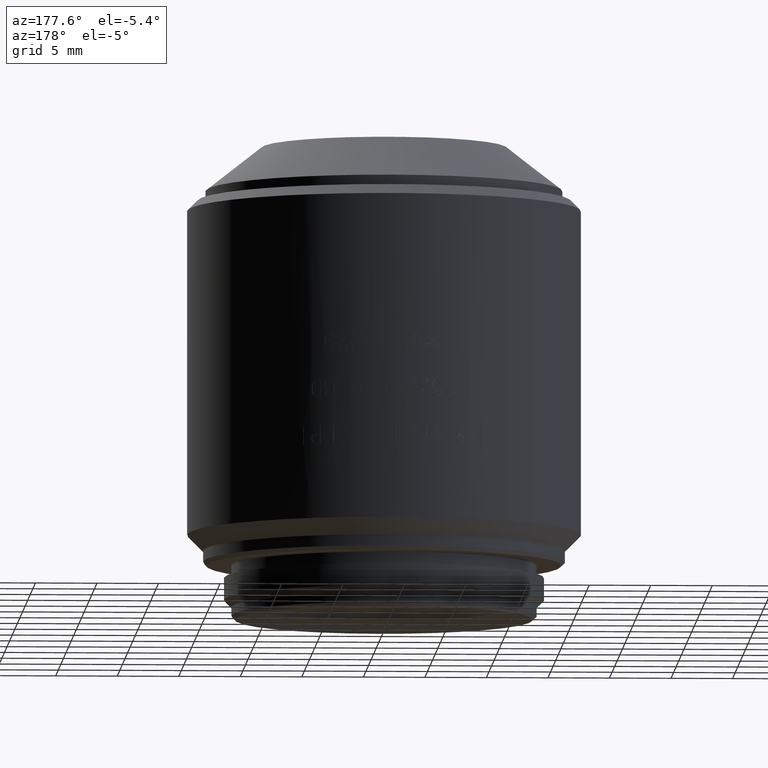
[diagram: clean part render]
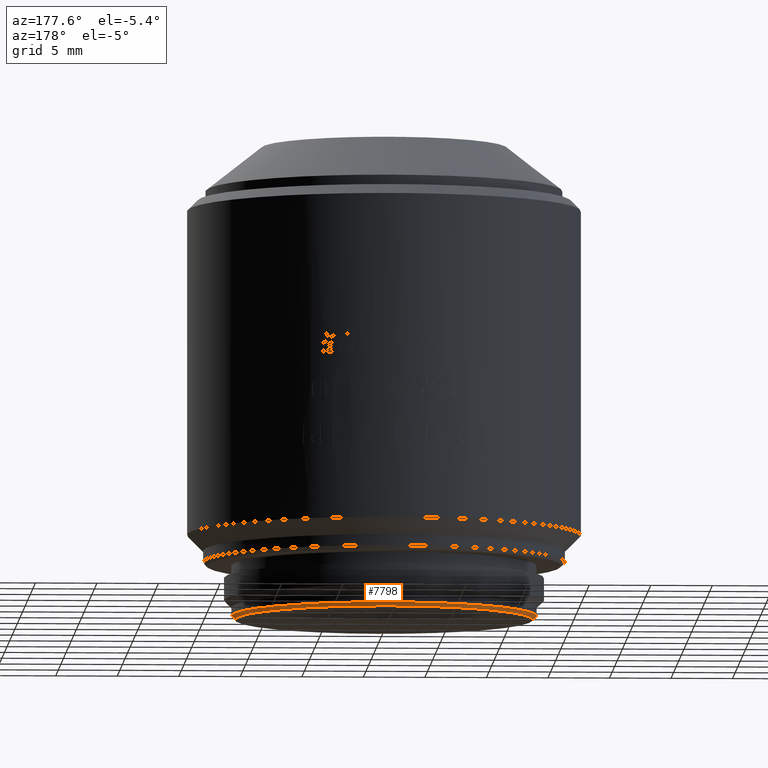
[diagram: same view with one face highlighted and labeled with its STEP entity id]
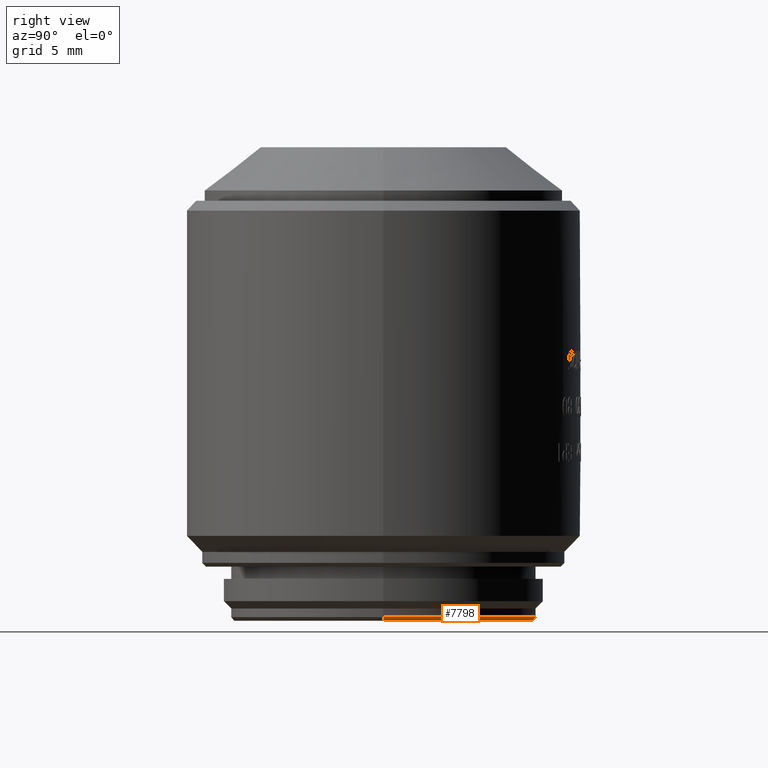
[diagram: same view with one face highlighted and labeled with its STEP entity id]
A machine part, auxiliary view. The second image highlights one B-rep face of the part: STEP entity #7798.
A second angle (right view) of the same face is appended — the face is thin or edge-on in the first view.
In plain terms, the highlighted conical surface has half-angle 45 deg.
Its self-contained STEP definition (entity closure, byte-faithful):
#106 = CARTESIAN_POINT ( 'NONE',  ( -12.09999999999999964, 1.481822626968297304E-15, 0.000000000000000000 ) ) ;
#740 = VECTOR ( 'NONE', #7063, 999.9999999999998863 ) ;
#1120 = FACE_OUTER_BOUND ( 'NONE', #11400, .T. ) ;
#1852 = EDGE_CURVE ( 'NONE', #24653, #9609, #18340, .T. ) ;
#1882 = CARTESIAN_POINT ( 'NONE',  ( -12.09999999999999964, 1.500192328955507537E-15, 0.000000000000000000 ) ) ;
#1956 = ORIENTED_EDGE ( 'NONE', *, *, #23128, .F. ) ;
#2634 = CARTESIAN_POINT ( 'NONE',  ( -12.39999999999999680, 1.518562030942717573E-15, 0.2999999999999999889 ) ) ;
#3240 = DIRECTION ( 'NONE',  ( 0.000000000000000000, 0.000000000000000000, -1.000000000000000000 ) ) ;
#3834 = CARTESIAN_POINT ( 'NONE',  ( 12.09999999999999964, 0.000000000000000000, 0.000000000000000000 ) ) ;
#4510 = CARTESIAN_POINT ( 'NONE',  ( 0.000000000000000000, 0.000000000000000000, 0.000000000000000000 ) ) ;
#5147 = CONICAL_SURFACE ( 'NONE', #9550, 12.09999999999999964, 0.7853981633974419507 ) ;
#5229 = ORIENTED_EDGE ( 'NONE', *, *, #17439, .T. ) ;
#6271 = DIRECTION ( 'NONE',  ( 1.000000000000000000, 0.000000000000000000, 0.000000000000000000 ) ) ;
#6544 = CARTESIAN_POINT ( 'NONE',  ( 0.000000000000000000, 0.000000000000000000, 0.2999999999999999889 ) ) ;
#7063 = DIRECTION ( 'NONE',  ( 0.7071067811865431318, 0.000000000000000000, 0.7071067811865520136 ) ) ;
#7188 = CARTESIAN_POINT ( 'NONE',  ( 12.09999999999999964, 0.000000000000000000, 0.000000000000000000 ) ) ;
#7798 = ADVANCED_FACE ( 'NONE', ( #1120 ), #5147, .T. ) ;
#9448 = AXIS2_PLACEMENT_3D ( 'NONE', #12784, #3240, #16672 ) ;
#9550 = AXIS2_PLACEMENT_3D ( 'NONE', #4510, #22082, #6271 ) ;
#9609 = VERTEX_POINT ( 'NONE', #2634 ) ;
#10308 = AXIS2_PLACEMENT_3D ( 'NONE', #6544, #16207, #12437 ) ;
#11400 = EDGE_LOOP ( 'NONE', ( #1956, #5229, #17799, #13628 ) ) ;
#12437 = DIRECTION ( 'NONE',  ( 1.000000000000000000, 0.000000000000000000, 0.000000000000000000 ) ) ;
#12713 = LINE ( 'NONE', #7188, #740 ) ;
#12784 = CARTESIAN_POINT ( 'NONE',  ( 0.000000000000000000, 0.000000000000000000, 0.000000000000000000 ) ) ;
#13599 = EDGE_CURVE ( 'NONE', #19520, #24653, #12713, .T. ) ;
#13628 = ORIENTED_EDGE ( 'NONE', *, *, #13599, .F. ) ;
#16207 = DIRECTION ( 'NONE',  ( 0.000000000000000000, 0.000000000000000000, 1.000000000000000000 ) ) ;
#16672 = DIRECTION ( 'NONE',  ( 1.000000000000000000, 0.000000000000000000, 0.000000000000000000 ) ) ;
#17053 = DIRECTION ( 'NONE',  ( -0.7071067811865431318, 8.659560562354878624E-17, 0.7071067811865520136 ) ) ;
#17300 = LINE ( 'NONE', #106, #21565 ) ;
#17439 = EDGE_CURVE ( 'NONE', #18384, #9609, #17300, .T. ) ;
#17799 = ORIENTED_EDGE ( 'NONE', *, *, #1852, .F. ) ;
#18340 = CIRCLE ( 'NONE', #10308, 12.40000000000000036 ) ;
#18384 = VERTEX_POINT ( 'NONE', #1882 ) ;
#19472 = CIRCLE ( 'NONE', #9448, 12.09999999999999964 ) ;
#19520 = VERTEX_POINT ( 'NONE', #3834 ) ;
#19621 = CARTESIAN_POINT ( 'NONE',  ( 12.39999999999999680, 0.000000000000000000, 0.2999999999999999889 ) ) ;
#21565 = VECTOR ( 'NONE', #17053, 999.9999999999998863 ) ;
#22082 = DIRECTION ( 'NONE',  ( 0.000000000000000000, 0.000000000000000000, 1.000000000000000000 ) ) ;
#23128 = EDGE_CURVE ( 'NONE', #18384, #19520, #19472, .T. ) ;
#24653 = VERTEX_POINT ( 'NONE', #19621 ) ;